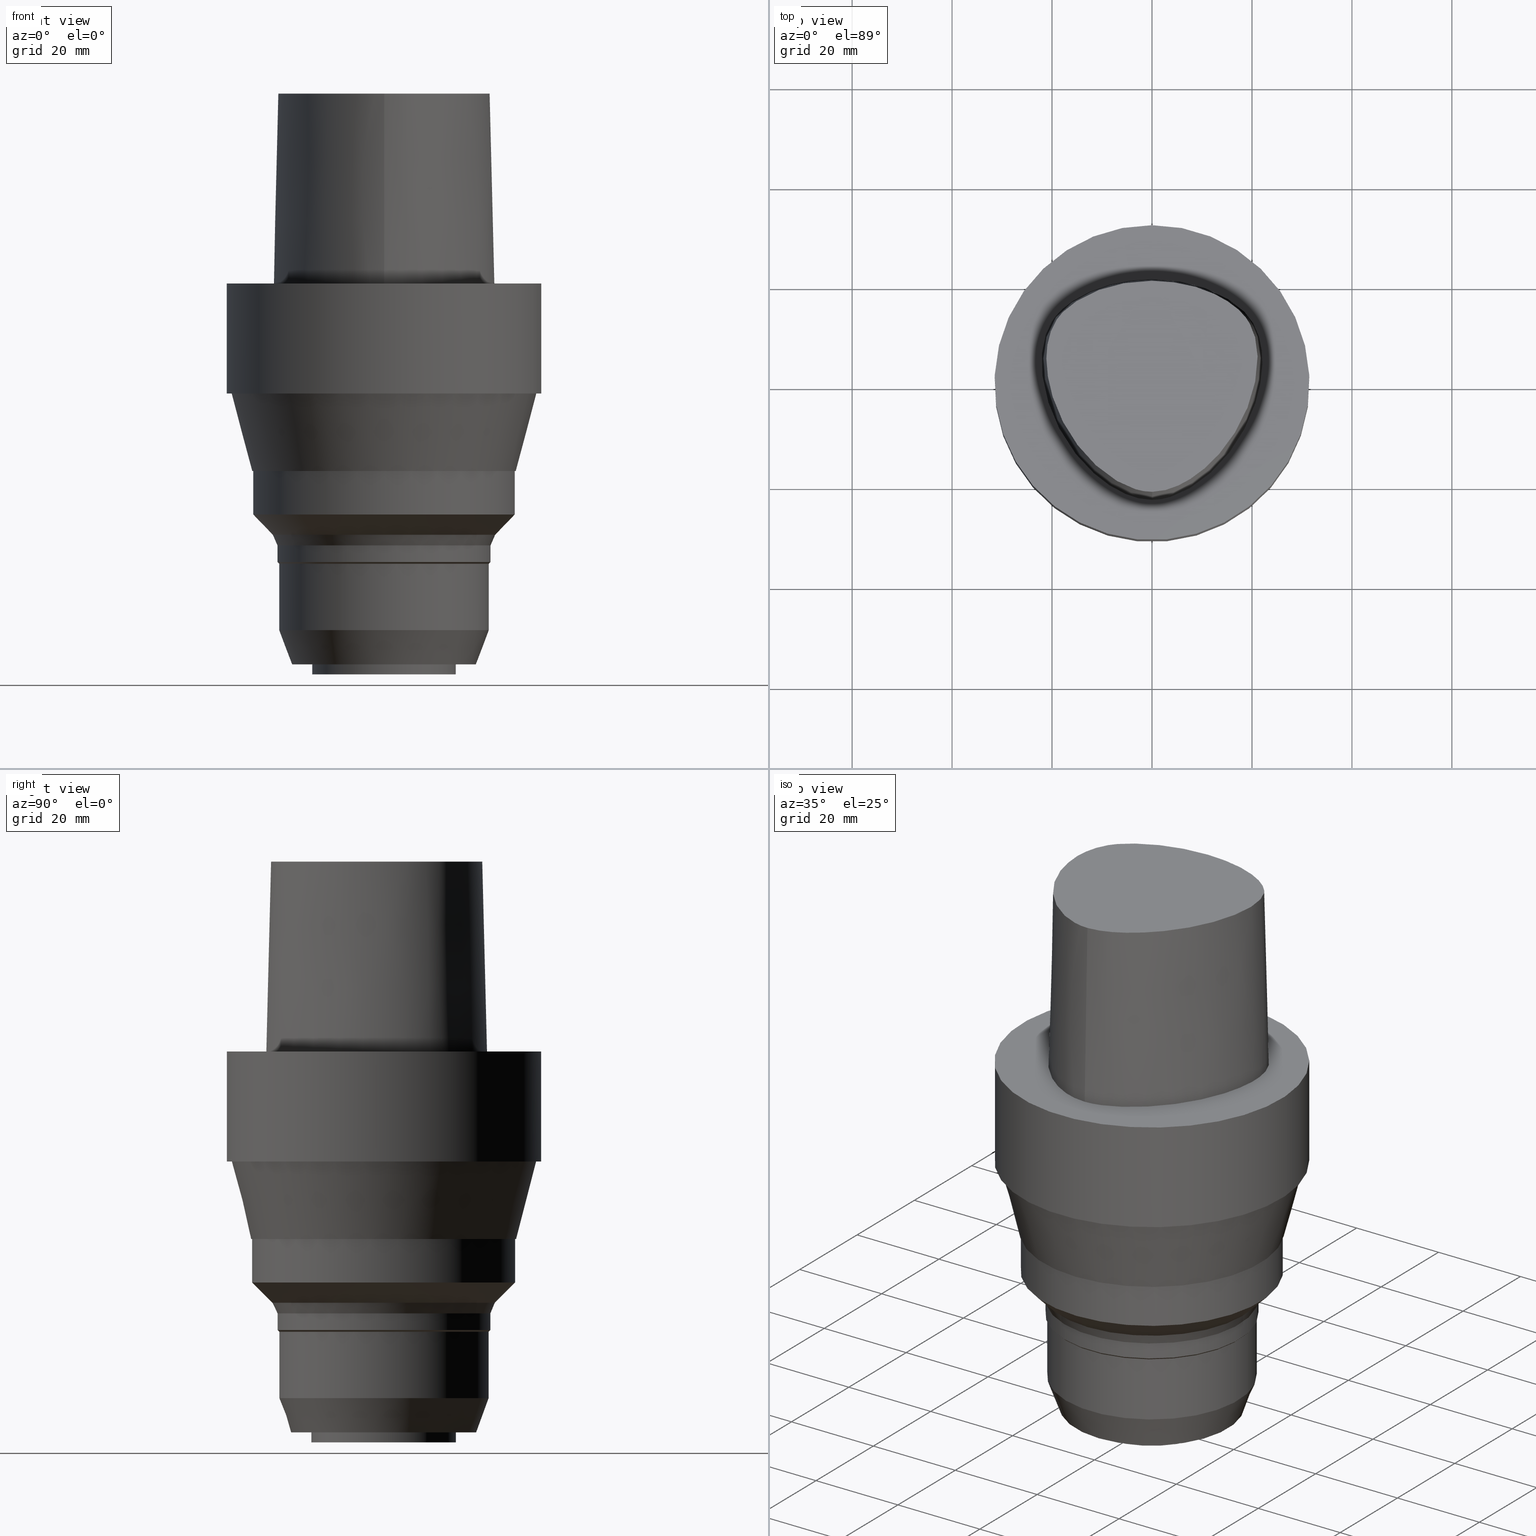
[diagram: canonical four-view strip — front | top / right | iso, engineering-drawing reading convention]
A machine part, canonical four-view strip (front | top / right | iso — engineering-drawing reading convention). The complete STEP part file that produces these views, byte-faithful:
ISO-10303-21;
HEADER;
FILE_DESCRIPTION((''),'1');
FILE_NAME('V:/90_\X2\53D65F9730C730FC30BF\X0\/00_\X2\6DE18DEF30C730FC30BF\X0\/ALL/CAPTO-BKUS\X2\52A05DE556F3\X0\_201801/C6-MEGADS-A/C6-MEGA.625DS-3A.stp','2018-02-01T09:05:27',(''),(''),'Spatial Interop R21 SP3','Kubotek KeyCreator 2011 V10.0.2 (22737)',' ');
FILE_SCHEMA(('automotive_design'));
ENDSEC;
DATA;
#1=MECHANICAL_DESIGN_GEOMETRIC_PRESENTATION_REPRESENTATION(' ',(#10,#11,#12,#13,#14,#15,#16,#17,#18,#19,#20,#21,#22,#23,#24,#25,#26,#27,#28,#29,#30,#31,#32,#33,#34,#35,#36,#37,#38,#39,#40,#41,#42,#43,#44,#45,#46,#47,#48,#49,#50,#51),#6);
#2=PRODUCT_DEFINITION_CONTEXT('',#52,'design');
#3=APPLICATION_PROTOCOL_DEFINITION('INTERNATIONAL STANDARD','automotive_design',1994,#52);
#4=PRODUCT_CATEGORY_RELATIONSHIP('NONE','NONE',#53,#54);
#5=SHAPE_DEFINITION_REPRESENTATION(#55,#56);
#6= (GEOMETRIC_REPRESENTATION_CONTEXT(3)GLOBAL_UNCERTAINTY_ASSIGNED_CONTEXT((#59))GLOBAL_UNIT_ASSIGNED_CONTEXT((#61,#62,#63))REPRESENTATION_CONTEXT('NONE','WORKSPACE'));
#10=STYLED_ITEM('',(#65),#66);
#11=STYLED_ITEM('',(#67),#68);
#12=STYLED_ITEM('',(#69),#70);
#13=STYLED_ITEM('',(#71,#72),#73);
#14=STYLED_ITEM('',(#74),#75);
#15=STYLED_ITEM('',(#76),#77);
#16=STYLED_ITEM('',(#78),#79);
#17=STYLED_ITEM('',(#80),#81);
#18=STYLED_ITEM('',(#82,#83),#84);
#19=STYLED_ITEM('',(#85,#86),#87);
#20=STYLED_ITEM('',(#88),#89);
#21=STYLED_ITEM('',(#90,#91),#92);
#22=STYLED_ITEM('',(#93,#94),#95);
#23=STYLED_ITEM('',(#96,#97),#98);
#24=STYLED_ITEM('',(#99,#100),#101);
#25=STYLED_ITEM('',(#102,#103),#104);
#26=STYLED_ITEM('',(#105,#106),#107);
#27=STYLED_ITEM('',(#108,#109),#110);
#28=STYLED_ITEM('',(#111),#112);
#29=STYLED_ITEM('',(#113),#114);
#30=STYLED_ITEM('',(#115,#116),#117);
#31=STYLED_ITEM('',(#118),#119);
#32=STYLED_ITEM('',(#120,#121),#122);
#33=STYLED_ITEM('',(#123),#124);
#34=STYLED_ITEM('',(#125,#126),#127);
#35=STYLED_ITEM('',(#128,#129),#130);
#36=STYLED_ITEM('',(#131,#132),#133);
#37=STYLED_ITEM('',(#134),#135);
#38=STYLED_ITEM('',(#136),#137);
#39=STYLED_ITEM('',(#138,#139),#140);
#40=STYLED_ITEM('',(#141,#142),#143);
#41=STYLED_ITEM('',(#144),#145);
#42=STYLED_ITEM('',(#146),#147);
#43=STYLED_ITEM('',(#148,#149),#150);
#44=STYLED_ITEM('',(#151),#152);
#45=STYLED_ITEM('',(#153),#154);
#46=STYLED_ITEM('',(#155),#156);
#47=STYLED_ITEM('',(#157),#158);
#48=STYLED_ITEM('',(#159),#160);
#49=STYLED_ITEM('',(#161,#162),#163);
#50=STYLED_ITEM('',(#164,#165),#166);
#51=STYLED_ITEM('',(#167),#168);
#52=APPLICATION_CONTEXT(' ');
#53=PRODUCT_CATEGORY('part','NONE');
#54=PRODUCT_RELATED_PRODUCT_CATEGORY('detail',' ',(#169));
#55=PRODUCT_DEFINITION_SHAPE('NONE','NONE',#170);
#56=ADVANCED_BREP_SHAPE_REPRESENTATION('Unnamed[1]',(#143,#171),#6);
#59=UNCERTAINTY_MEASURE_WITH_UNIT(LENGTH_MEASURE(1.0E-006),#61,'','');
#61= (CONVERSION_BASED_UNIT('MILLIMETRE',#174)LENGTH_UNIT()NAMED_UNIT(#177));
#62= (NAMED_UNIT(#179)PLANE_ANGLE_UNIT()SI_UNIT($,.RADIAN.));
#63= (NAMED_UNIT(#179)SOLID_ANGLE_UNIT()SI_UNIT($,.STERADIAN.));
#65=PRESENTATION_STYLE_ASSIGNMENT((#185));
#66=EDGE_CURVE('Unnamed[1]',#186,#186,#187,.T.);
#67=PRESENTATION_STYLE_ASSIGNMENT((#188));
#68=EDGE_CURVE('Unnamed[1]',#189,#190,#191,.T.);
#69=PRESENTATION_STYLE_ASSIGNMENT((#192));
#70=EDGE_CURVE('Unnamed[1]',#193,#193,#194,.T.);
#71=PRESENTATION_STYLE_ASSIGNMENT((#195));
#72=PRESENTATION_STYLE_ASSIGNMENT((#196));
#73=ADVANCED_FACE('Unnamed[1]',(#197,#198),#199,.T.);
#74=PRESENTATION_STYLE_ASSIGNMENT((#200));
#75=EDGE_CURVE('Unnamed[1]',#201,#201,#202,.T.);
#76=PRESENTATION_STYLE_ASSIGNMENT((#203));
#77=EDGE_CURVE('Unnamed[1]',#204,#204,#205,.T.);
#78=PRESENTATION_STYLE_ASSIGNMENT((#206));
#79=EDGE_CURVE('Unnamed[1]',#207,#208,#209,.T.);
#80=PRESENTATION_STYLE_ASSIGNMENT((#210));
#81=EDGE_CURVE('Unnamed[1]',#211,#211,#212,.T.);
#82=PRESENTATION_STYLE_ASSIGNMENT((#213));
#83=PRESENTATION_STYLE_ASSIGNMENT((#214));
#84=ADVANCED_FACE('Unnamed[1]',(#215),#216,.T.);
#85=PRESENTATION_STYLE_ASSIGNMENT((#217));
#86=PRESENTATION_STYLE_ASSIGNMENT((#218));
#87=ADVANCED_FACE('Unnamed[1]',(#219,#220),#221,.T.);
#88=PRESENTATION_STYLE_ASSIGNMENT((#222));
#89=EDGE_CURVE('Unnamed[1]',#207,#190,#223,.T.);
#90=PRESENTATION_STYLE_ASSIGNMENT((#224));
#91=PRESENTATION_STYLE_ASSIGNMENT((#225));
#92=ADVANCED_FACE('Unnamed[1]',(#226,#227),#228,.T.);
#93=PRESENTATION_STYLE_ASSIGNMENT((#229));
#94=PRESENTATION_STYLE_ASSIGNMENT((#230));
#95=ADVANCED_FACE('Unnamed[1]',(#231),#232,.T.);
#96=PRESENTATION_STYLE_ASSIGNMENT((#233));
#97=PRESENTATION_STYLE_ASSIGNMENT((#234));
#98=ADVANCED_FACE('Unnamed[1]',(#235,#236),#237,.T.);
#99=PRESENTATION_STYLE_ASSIGNMENT((#238));
#100=PRESENTATION_STYLE_ASSIGNMENT((#239));
#101=ADVANCED_FACE('Unnamed[1]',(#240,#241),#242,.T.);
#102=PRESENTATION_STYLE_ASSIGNMENT((#243));
#103=PRESENTATION_STYLE_ASSIGNMENT((#244));
#104=ADVANCED_FACE('Unnamed[1]',(#245,#246),#247,.T.);
#105=PRESENTATION_STYLE_ASSIGNMENT((#248));
#106=PRESENTATION_STYLE_ASSIGNMENT((#249));
#107=ADVANCED_FACE('Unnamed[1]',(#250,#251),#252,.T.);
#108=PRESENTATION_STYLE_ASSIGNMENT((#253));
#109=PRESENTATION_STYLE_ASSIGNMENT((#254));
#110=ADVANCED_FACE('Unnamed[1]',(#255,#256),#257,.T.);
#111=PRESENTATION_STYLE_ASSIGNMENT((#258));
#112=EDGE_CURVE('Unnamed[1]',#259,#189,#260,.T.);
#113=PRESENTATION_STYLE_ASSIGNMENT((#261));
#114=EDGE_CURVE('Unnamed[1]',#262,#262,#263,.T.);
#115=PRESENTATION_STYLE_ASSIGNMENT((#264));
#116=PRESENTATION_STYLE_ASSIGNMENT((#265));
#117=ADVANCED_FACE('Unnamed[1]',(#266,#267),#268,.T.);
#118=PRESENTATION_STYLE_ASSIGNMENT((#269));
#119=EDGE_CURVE('Unnamed[1]',#270,#270,#271,.T.);
#120=PRESENTATION_STYLE_ASSIGNMENT((#272));
#121=PRESENTATION_STYLE_ASSIGNMENT((#273));
#122=ADVANCED_FACE('Unnamed[1]',(#274,#275),#276,.T.);
#123=PRESENTATION_STYLE_ASSIGNMENT((#277));
#124=EDGE_CURVE('Unnamed[1]',#278,#278,#279,.T.);
#125=PRESENTATION_STYLE_ASSIGNMENT((#280));
#126=PRESENTATION_STYLE_ASSIGNMENT((#281));
#127=ADVANCED_FACE('Unnamed[1]',(#282),#283,.T.);
#128=PRESENTATION_STYLE_ASSIGNMENT((#284));
#129=PRESENTATION_STYLE_ASSIGNMENT((#285));
#130=ADVANCED_FACE('Unnamed[1]',(#286,#287),#288,.T.);
#131=PRESENTATION_STYLE_ASSIGNMENT((#289));
#132=PRESENTATION_STYLE_ASSIGNMENT((#290));
#133=ADVANCED_FACE('Unnamed[1]',(#291),#292,.T.);
#134=PRESENTATION_STYLE_ASSIGNMENT((#293));
#135=EDGE_CURVE('Unnamed[1]',#294,#294,#295,.T.);
#136=PRESENTATION_STYLE_ASSIGNMENT((#296));
#137=EDGE_CURVE('Unnamed[1]',#297,#297,#298,.T.);
#138=PRESENTATION_STYLE_ASSIGNMENT((#299));
#139=PRESENTATION_STYLE_ASSIGNMENT((#300));
#140=ADVANCED_FACE('Unnamed[1]',(#301,#302),#303,.T.);
#141=PRESENTATION_STYLE_ASSIGNMENT((#304));
#142=PRESENTATION_STYLE_ASSIGNMENT((#305));
#143=MANIFOLD_SOLID_BREP('Unnamed[1]',#306);
#144=PRESENTATION_STYLE_ASSIGNMENT((#307));
#145=EDGE_CURVE('Unnamed[1]',#190,#259,#308,.T.);
#146=PRESENTATION_STYLE_ASSIGNMENT((#309));
#147=EDGE_CURVE('Unnamed[1]',#208,#189,#310,.T.);
#148=PRESENTATION_STYLE_ASSIGNMENT((#311));
#149=PRESENTATION_STYLE_ASSIGNMENT((#312));
#150=ADVANCED_FACE('Unnamed[1]',(#313),#314,.T.);
#151=PRESENTATION_STYLE_ASSIGNMENT((#315));
#152=EDGE_CURVE('Unnamed[1]',#316,#316,#317,.T.);
#153=PRESENTATION_STYLE_ASSIGNMENT((#318));
#154=EDGE_CURVE('Unnamed[1]',#319,#319,#320,.T.);
#155=PRESENTATION_STYLE_ASSIGNMENT((#321));
#156=EDGE_CURVE('Unnamed[1]',#208,#207,#322,.T.);
#157=PRESENTATION_STYLE_ASSIGNMENT((#323));
#158=EDGE_CURVE('Unnamed[1]',#324,#324,#325,.T.);
#159=PRESENTATION_STYLE_ASSIGNMENT((#326));
#160=EDGE_CURVE('Unnamed[1]',#327,#327,#328,.T.);
#161=PRESENTATION_STYLE_ASSIGNMENT((#329));
#162=PRESENTATION_STYLE_ASSIGNMENT((#330));
#163=ADVANCED_FACE('Unnamed[1]',(#331,#332),#333,.T.);
#164=PRESENTATION_STYLE_ASSIGNMENT((#334));
#165=PRESENTATION_STYLE_ASSIGNMENT((#335));
#166=ADVANCED_FACE('Unnamed[1]',(#336,#337),#338,.T.);
#167=PRESENTATION_STYLE_ASSIGNMENT((#339));
#168=EDGE_CURVE('Unnamed[1]',#208,#259,#340,.T.);
#169=PRODUCT('Unnamed[1]','Unnamed[1]','PART-Unnamed[1]-DESC',(#341));
#170=PRODUCT_DEFINITION('NONE','NONE',#342,#2);
#171=AXIS2_PLACEMENT_3D('',#343,#344,#345);
#174=LENGTH_MEASURE_WITH_UNIT(LENGTH_MEASURE(1.0),#346);
#177=DIMENSIONAL_EXPONENTS(1.0,0.0,0.0,0.0,0.0,0.0,0.0);
#179=DIMENSIONAL_EXPONENTS(0.0,0.0,0.0,0.0,0.0,0.0,0.0);
#185=CURVE_STYLE('',#347,POSITIVE_LENGTH_MEASURE(1000.0),#348);
#186=VERTEX_POINT('',#349);
#187=CIRCLE('',#350,22.2286796564404);
#188=CURVE_STYLE('',#351,POSITIVE_LENGTH_MEASURE(1000.0),#352);
#189=VERTEX_POINT('',#353);
#190=VERTEX_POINT('',#354);
#191=B_SPLINE_CURVE_WITH_KNOTS('',3,(#355,#356,#357,#358,#359,#360,#361,#362,#363,#364,#365,#366,#367,#368,#369,#370,#371),.UNSPECIFIED.,.F.,.F.,(4,1,1,1,1,1,1,1,1,1,1,1,1,1,4),(-13.2302678617486,-12.816821991069,-12.4033761203893,-11.9899302497097,-11.57648437903,-11.1630385083504,-10.9563155730106,-10.7495926376707,-10.3361467669911,-9.92270089631145,-9.09580915495216,-8.26891741359287,-7.44202567223358,-7.02857980155394,-6.6151339308743),.UNSPECIFIED.);
#192=CURVE_STYLE('',#372,POSITIVE_LENGTH_MEASURE(1000.0),#373);
#193=VERTEX_POINT('',#374);
#194=CIRCLE('',#375,20.9999999999999);
#195=SURFACE_STYLE_USAGE(.BOTH.,#376);
#196=CURVE_STYLE('',#377,POSITIVE_LENGTH_MEASURE(1000.0),#378);
#197=FACE_BOUND('',#379,.T.);
#198=FACE_BOUND('',#380,.T.);
#199=CYLINDRICAL_SURFACE('',#381,31.5);
#200=CURVE_STYLE('',#382,POSITIVE_LENGTH_MEASURE(1000.0),#383);
#201=VERTEX_POINT('',#384);
#202=CIRCLE('',#385,20.9999999999999);
#203=CURVE_STYLE('',#386,POSITIVE_LENGTH_MEASURE(1000.0),#387);
#204=VERTEX_POINT('',#388);
#205=CIRCLE('',#389,26.3000000000001);
#206=CURVE_STYLE('',#390,POSITIVE_LENGTH_MEASURE(1000.0),#391);
#207=VERTEX_POINT('',#392);
#208=VERTEX_POINT('',#393);
#209=B_SPLINE_CURVE_WITH_KNOTS('',3,(#394,#395,#396,#397,#398,#399,#400,#401,#402,#403,#404,#405,#406,#407,#408,#409),.UNSPECIFIED.,.F.,.F.,(4,1,1,1,1,1,1,1,1,1,1,1,1,4),(6.61513393087476,6.99917207152274,7.48193246986995,7.96289324787093,8.45540287038584,9.10291653679981,9.67129810936083,10.1618749681153,10.6358867802489,11.1080734988593,11.6043706019633,12.09451993853,12.6985979284494,13.2302678617486),.UNSPECIFIED.);
#210=CURVE_STYLE('',#410,POSITIVE_LENGTH_MEASURE(1000.0),#411);
#211=VERTEX_POINT('',#412);
#212=CIRCLE('',#413,31.5);
#213=SURFACE_STYLE_USAGE(.BOTH.,#414);
#214=CURVE_STYLE('',#415,POSITIVE_LENGTH_MEASURE(1000.0),#416);
#215=FACE_OUTER_BOUND('',#417,.T.);
#216=B_SPLINE_SURFACE_WITH_KNOTS('',3,3,((#418,#419,#420,#421),(#422,#423,#424,#425),(#426,#427,#428,#429),(#430,#431,#432,#433),(#434,#435,#436,#437),(#438,#439,#440,#441),(#442,#443,#444,#445),(#446,#447,#448,#449),(#450,#451,#452,#453),(#454,#455,#456,#457),(#458,#459,#460,#461),(#462,#463,#464,#465),(#466,#467,#468,#469),(#470,#471,#472,#473),(#474,#475,#476,#477),(#478,#479,#480,#481),(#482,#483,#484,#485),(#486,#487,#488,#489)),.UNSPECIFIED.,.F.,.F.,.F.,(4,1,1,1,1,1,1,1,1,2,1,1,1,1,4),(4,4),(-6.6151339308743,-6.20168806019465,-5.78824218951501,-5.37479631883537,-4.96135044815572,-4.13445870679644,-3.30756696543715,-2.89412109475751,-2.48067522407786,-2.06722935339822,-1.65378348271857,-1.24033761203893,-0.826891741359287,-0.413445870679644,0.0),(-3.8,0.0),.UNSPECIFIED.);
#217=SURFACE_STYLE_USAGE(.BOTH.,#490);
#218=CURVE_STYLE('',#491,POSITIVE_LENGTH_MEASURE(1000.0),#492);
#219=FACE_BOUND('',#493,.T.);
#220=FACE_OUTER_BOUND('',#494,.T.);
#221=PLANE('',#495);
#222=CURVE_STYLE('',#496,POSITIVE_LENGTH_MEASURE(1000.0),#497);
#223=LINE('',#498,#499);
#224=SURFACE_STYLE_USAGE(.BOTH.,#500);
#225=CURVE_STYLE('',#501,POSITIVE_LENGTH_MEASURE(1000.0),#502);
#226=FACE_BOUND('',#503,.T.);
#227=FACE_BOUND('',#504,.T.);
#228=CONICAL_SURFACE('',#505,21.7893398282202,0.392699081698718);
#229=SURFACE_STYLE_USAGE(.BOTH.,#506);
#230=CURVE_STYLE('',#507,POSITIVE_LENGTH_MEASURE(1000.0),#508);
#231=FACE_OUTER_BOUND('',#509,.T.);
#232=PLANE('',#510);
#233=SURFACE_STYLE_USAGE(.BOTH.,#511);
#234=CURVE_STYLE('',#512,POSITIVE_LENGTH_MEASURE(1000.0),#513);
#235=FACE_BOUND('',#514,.T.);
#236=FACE_BOUND('',#515,.T.);
#237=CONICAL_SURFACE('',#516,28.5000000000026,0.252554275777704);
#238=SURFACE_STYLE_USAGE(.BOTH.,#517);
#239=CURVE_STYLE('',#518,POSITIVE_LENGTH_MEASURE(1000.0),#519);
#240=FACE_BOUND('',#520,.T.);
#241=FACE_BOUND('',#521,.T.);
#242=CONICAL_SURFACE('',#522,24.2643398282202,0.785398163397472);
#243=SURFACE_STYLE_USAGE(.BOTH.,#523);
#244=CURVE_STYLE('',#524,POSITIVE_LENGTH_MEASURE(1000.0),#525);
#245=FACE_BOUND('',#526,.T.);
#246=FACE_BOUND('',#527,.T.);
#247=CYLINDRICAL_SURFACE('',#528,20.9999999999999);
#248=SURFACE_STYLE_USAGE(.BOTH.,#529);
#249=CURVE_STYLE('',#530,POSITIVE_LENGTH_MEASURE(1000.0),#531);
#250=FACE_BOUND('',#532,.T.);
#251=FACE_OUTER_BOUND('',#533,.T.);
#252=PLANE('',#534);
#253=SURFACE_STYLE_USAGE(.BOTH.,#535);
#254=CURVE_STYLE('',#536,POSITIVE_LENGTH_MEASURE(1000.0),#537);
#255=FACE_BOUND('',#538,.T.);
#256=FACE_OUTER_BOUND('',#539,.T.);
#257=PLANE('',#540);
#258=CURVE_STYLE('',#541,POSITIVE_LENGTH_MEASURE(1000.0),#542);
#259=VERTEX_POINT('',#543);
#260=CIRCLE('',#544,0.949936168436318);
#261=CURVE_STYLE('',#545,POSITIVE_LENGTH_MEASURE(1000.0),#546);
#262=VERTEX_POINT('',#547);
#263=CIRCLE('',#548,31.5);
#264=SURFACE_STYLE_USAGE(.BOTH.,#549);
#265=CURVE_STYLE('',#550,POSITIVE_LENGTH_MEASURE(1000.0),#551);
#266=FACE_BOUND('',#552,.T.);
#267=FACE_BOUND('',#553,.T.);
#268=CYLINDRICAL_SURFACE('',#554,26.3);
#269=CURVE_STYLE('',#555,POSITIVE_LENGTH_MEASURE(1000.0),#556);
#270=VERTEX_POINT('',#557);
#271=CIRCLE('',#558,30.4999999999999);
#272=SURFACE_STYLE_USAGE(.BOTH.,#559);
#273=CURVE_STYLE('',#560,POSITIVE_LENGTH_MEASURE(1000.0),#561);
#274=FACE_BOUND('',#562,.T.);
#275=FACE_BOUND('',#563,.T.);
#276=CYLINDRICAL_SURFACE('',#564,14.4599999999988);
#277=CURVE_STYLE('',#565,POSITIVE_LENGTH_MEASURE(1000.0),#566);
#278=VERTEX_POINT('',#567);
#279=CIRCLE('',#568,26.3);
#280=SURFACE_STYLE_USAGE(.BOTH.,#569);
#281=CURVE_STYLE('',#570,POSITIVE_LENGTH_MEASURE(1000.0),#571);
#282=FACE_OUTER_BOUND('',#572,.T.);
#283=CONICAL_SURFACE('',#573,1.0,0.0249931148600041);
#284=SURFACE_STYLE_USAGE(.BOTH.,#574);
#285=CURVE_STYLE('',#575,POSITIVE_LENGTH_MEASURE(1000.0),#576);
#286=FACE_BOUND('',#577,.T.);
#287=FACE_OUTER_BOUND('',#578,.T.);
#288=PLANE('',#579);
#289=SURFACE_STYLE_USAGE(.BOTH.,#580);
#290=CURVE_STYLE('',#581,POSITIVE_LENGTH_MEASURE(1000.0),#582);
#291=FACE_OUTER_BOUND('',#583,.T.);
#292=B_SPLINE_SURFACE_WITH_KNOTS('',3,3,((#584,#585,#586,#587),(#588,#589,#590,#591),(#592,#593,#594,#595),(#596,#597,#598,#599),(#600,#601,#602,#603),(#604,#605,#606,#607),(#608,#609,#610,#611),(#612,#613,#614,#615),(#616,#617,#618,#619),(#620,#621,#622,#623),(#624,#625,#626,#627),(#628,#629,#630,#631),(#632,#633,#634,#635),(#636,#637,#638,#639),(#640,#641,#642,#643),(#644,#645,#646,#647),(#648,#649,#650,#651)),.UNSPECIFIED.,.F.,.F.,.F.,(4,1,1,1,1,1,1,1,1,1,1,1,1,1,4),(4,4),(-13.2302678617486,-12.816821991069,-12.4033761203893,-11.9899302497097,-11.57648437903,-11.1630385083504,-10.9563155730106,-10.7495926376707,-10.3361467669911,-9.92270089631145,-9.09580915495216,-8.26891741359287,-7.44202567223358,-7.02857980155394,-6.6151339308743),(-3.8,0.0),.UNSPECIFIED.);
#293=CURVE_STYLE('',#652,POSITIVE_LENGTH_MEASURE(1000.0),#653);
#294=VERTEX_POINT('',#654);
#295=CIRCLE('',#655,21.35);
#296=CURVE_STYLE('',#656,POSITIVE_LENGTH_MEASURE(1000.0),#657);
#297=VERTEX_POINT('',#658);
#298=CIRCLE('',#659,14.4599999999987);
#299=SURFACE_STYLE_USAGE(.BOTH.,#660);
#300=CURVE_STYLE('',#661,POSITIVE_LENGTH_MEASURE(1000.0),#662);
#301=FACE_BOUND('',#663,.T.);
#302=FACE_BOUND('',#664,.T.);
#303=CONICAL_SURFACE('',#665,19.7499999999999,0.349065850398807);
#304=SURFACE_STYLE_USAGE(.BOTH.,#666);
#305=CURVE_STYLE('',#667,POSITIVE_LENGTH_MEASURE(1000.0),#668);
#306=CLOSED_SHELL('',(#133,#84,#127,#95,#107,#73,#87,#98,#130,#117,#101,#92,#166,#163,#104,#140,#110,#122,#150));
#307=CURVE_STYLE('',#669,POSITIVE_LENGTH_MEASURE(1000.0),#670);
#308=B_SPLINE_CURVE_WITH_KNOTS('',3,(#671,#672,#673,#674,#675,#676,#677,#678,#679,#680,#681,#682,#683,#684,#685,#686,#687,#688),.UNSPECIFIED.,.F.,.F.,(4,1,1,1,1,1,1,1,1,2,1,1,1,1,4),(-6.6151339308743,-6.20168806019465,-5.78824218951501,-5.37479631883537,-4.96135044815572,-4.13445870679644,-3.30756696543715,-2.89412109475751,-2.48067522407786,-2.06722935339822,-1.65378348271857,-1.24033761203893,-0.826891741359287,-0.413445870679644,0.0),.UNSPECIFIED.);
#309=CURVE_STYLE('',#689,POSITIVE_LENGTH_MEASURE(1000.0),#690);
#310=LINE('',#691,#692);
#311=SURFACE_STYLE_USAGE(.BOTH.,#693);
#312=CURVE_STYLE('',#694,POSITIVE_LENGTH_MEASURE(1000.0),#695);
#313=FACE_OUTER_BOUND('',#696,.T.);
#314=PLANE('',#697);
#315=CURVE_STYLE('',#698,POSITIVE_LENGTH_MEASURE(1000.0),#699);
#316=VERTEX_POINT('',#700);
#317=CIRCLE('',#701,21.35);
#318=CURVE_STYLE('',#702,POSITIVE_LENGTH_MEASURE(1000.0),#703);
#319=VERTEX_POINT('',#704);
#320=CIRCLE('',#705,26.5000000000054);
#321=CURVE_STYLE('',#706,POSITIVE_LENGTH_MEASURE(1000.0),#707);
#322=B_SPLINE_CURVE_WITH_KNOTS('',3,(#708,#709,#710,#711,#712,#713,#714,#715,#716,#717,#718,#719,#720,#721,#722,#723),.UNSPECIFIED.,.F.,.F.,(4,1,1,1,1,1,1,1,1,1,1,1,1,4),(0.0,0.447924670568964,0.9388024242536,1.50591409090711,2.07314340012323,2.72424957442464,3.2253501842849,3.80982102049476,4.34867996267067,4.85900173381144,5.37972031856977,6.03459825488646,6.61113557741484,6.61513393087395),.UNSPECIFIED.);
#323=CURVE_STYLE('',#724,POSITIVE_LENGTH_MEASURE(1000.0),#725);
#324=VERTEX_POINT('',#726);
#325=CIRCLE('',#727,18.4999999999999);
#326=CURVE_STYLE('',#728,POSITIVE_LENGTH_MEASURE(1000.0),#729);
#327=VERTEX_POINT('',#730);
#328=CIRCLE('',#731,14.459999999999);
#329=SURFACE_STYLE_USAGE(.BOTH.,#732);
#330=CURVE_STYLE('',#733,POSITIVE_LENGTH_MEASURE(1000.0),#734);
#331=FACE_BOUND('',#735,.T.);
#332=FACE_BOUND('',#736,.T.);
#333=CONICAL_SURFACE('',#737,21.175,0.785398163387145);
#334=SURFACE_STYLE_USAGE(.BOTH.,#738);
#335=CURVE_STYLE('',#739,POSITIVE_LENGTH_MEASURE(1000.0),#740);
#336=FACE_BOUND('',#741,.T.);
#337=FACE_BOUND('',#742,.T.);
#338=CYLINDRICAL_SURFACE('',#743,21.35);
#339=CURVE_STYLE('',#744,POSITIVE_LENGTH_MEASURE(1000.0),#745);
#340=LINE('',#746,#747);
#341=PRODUCT_CONTEXT('',#52,'mechanical');
#342=PRODUCT_DEFINITION_FORMATION_WITH_SPECIFIED_SOURCE(' ','NONE',#169,.NOT_KNOWN.);
#343=CARTESIAN_POINT('',(0.0,0.0,0.0));
#344=DIRECTION('',(0.0,0.0,1.0));
#345=DIRECTION('',(1.0,0.0,0.0));
#346= (NAMED_UNIT(#177)LENGTH_UNIT()SI_UNIT(.MILLI.,.METRE.));
#347=DRAUGHTING_PRE_DEFINED_CURVE_FONT('continuous');
#348=COLOUR_RGB('',0.0,1.0,0.0);
#349=CARTESIAN_POINT('',(3.07823057738177E-015,22.2286796564404,-50.2713203435464));
#350=AXIS2_PLACEMENT_3D('',#749,#750,#751);
#351=DRAUGHTING_PRE_DEFINED_CURVE_FONT('continuous');
#352=COLOUR_RGB('',0.0,1.0,0.0);
#353=CARTESIAN_POINT('',(0.044682985379347,20.6765087343109,1.61778115328528E-031));
#354=CARTESIAN_POINT('',(0.04359356758149,-23.4691235068931,7.78075697532443E-032));
#355=CARTESIAN_POINT('',(0.044682985379347,20.6765087343109,1.61778115328528E-031));
#356=CARTESIAN_POINT('',(1.42379272427753,20.6097915814392,8.62816615085482E-032));
#357=CARTESIAN_POINT('',(4.2230955003445,20.4837538303966,1.4791141972894E-031));
#358=CARTESIAN_POINT('',(8.47220762821777,19.6890432607088,9.86076131526265E-032));
#359=CARTESIAN_POINT('',(12.5141247708253,18.2434968480404,0.0));
#360=CARTESIAN_POINT('',(16.3038624872874,16.1734192182143,1.97215226305253E-031));
#361=CARTESIAN_POINT('',(19.1446913988473,13.7036723639434,-1.97215226305253E-031));
#362=CARTESIAN_POINT('',(20.7319894342149,11.1014620996188,0.0));
#363=CARTESIAN_POINT('',(21.7831756505763,8.28099229708081,-1.97215226305253E-031));
#364=CARTESIAN_POINT('',(22.2258240701438,4.60865440596506,0.0));
#365=CARTESIAN_POINT('',(21.7436130080666,-1.11326526354485,0.0));
#366=CARTESIAN_POINT('',(19.5519487660502,-7.95432366164584,0.0));
#367=CARTESIAN_POINT('',(14.9574167123838,-15.2089785567293,0.0));
#368=CARTESIAN_POINT('',(9.66840283021945,-20.0827414369705,-9.86076131526265E-032));
#369=CARTESIAN_POINT('',(4.51628650521788,-22.7946374572188,-9.86076131526265E-032));
#370=CARTESIAN_POINT('',(1.55867251738073,-23.4612972770043,-1.23259516440783E-032));
#371=CARTESIAN_POINT('',(0.04359356758149,-23.4691235068931,7.78075697532443E-032));
#372=DRAUGHTING_PRE_DEFINED_CURVE_FONT('continuous');
#373=COLOUR_RGB('',0.0,1.0,0.0);
#374=CARTESIAN_POINT('',(3.43207265461011E-015,20.9999999999999,-56.0499999999943));
#375=AXIS2_PLACEMENT_3D('',#752,#753,#754);
#376=SURFACE_SIDE_STYLE('',(#755));
#377=DRAUGHTING_PRE_DEFINED_CURVE_FONT('continuous');
#378=COLOUR_RGB('',0.0,1.0,0.0);
#379=EDGE_LOOP('',(#756));
#380=EDGE_LOOP('',(#757));
#381=AXIS2_PLACEMENT_3D('',#758,#759,#760);
#382=DRAUGHTING_PRE_DEFINED_CURVE_FONT('continuous');
#383=COLOUR_RGB('',0.0,1.0,0.0);
#384=CARTESIAN_POINT('',(4.24531812631753E-015,20.9999999999999,-69.3313064513504));
#385=AXIS2_PLACEMENT_3D('',#761,#762,#763);
#386=DRAUGHTING_PRE_DEFINED_CURVE_FONT('continuous');
#387=COLOUR_RGB('',0.0,1.0,0.0);
#388=CARTESIAN_POINT('',(2.29621274840141E-015,26.3000000000001,-37.5000000000021));
#389=AXIS2_PLACEMENT_3D('',#764,#765,#766);
#390=DRAUGHTING_PRE_DEFINED_CURVE_FONT('continuous');
#391=COLOUR_RGB('',0.0,1.0,0.0);
#392=CARTESIAN_POINT('',(0.038736923393866,-22.5191997536361,38.0));
#393=CARTESIAN_POINT('',(-0.001218547003662,19.7276821925089,38.0));
#394=CARTESIAN_POINT('',(0.038736923394311,-22.519199753636,38.0));
#395=CARTESIAN_POINT('',(1.31742058183662,-22.512662269405,38.0));
#396=CARTESIAN_POINT('',(4.2093773447498,-21.9116226439989,38.0));
#397=CARTESIAN_POINT('',(8.20895504542113,-19.7798683845067,38.0));
#398=CARTESIAN_POINT('',(11.9784633234593,-16.681663904162,38.0));
#399=CARTESIAN_POINT('',(15.5308821579362,-12.5807487594113,38.0));
#400=CARTESIAN_POINT('',(18.4566248438667,-7.64932246015528,38.0));
#401=CARTESIAN_POINT('',(20.4036090752029,-2.27012499825289,38.0));
#402=CARTESIAN_POINT('',(21.2357187429189,2.79891401173156,38.0));
#403=CARTESIAN_POINT('',(21.0811206267748,7.62543090736657,38.0));
#404=CARTESIAN_POINT('',(19.3383577336563,12.2772250726194,38.0));
#405=CARTESIAN_POINT('',(15.5796322014404,15.5799672120682,38.0));
#406=CARTESIAN_POINT('',(10.8392956074438,17.9834601687347,38.0));
#407=CARTESIAN_POINT('',(5.56068045850571,19.4586143858472,38.0));
#408=CARTESIAN_POINT('',(1.77223893711014,19.6418877095654,38.0));
#409=CARTESIAN_POINT('',(-0.001218367817519,19.7276822012873,38.0));
#410=DRAUGHTING_PRE_DEFINED_CURVE_FONT('continuous');
#411=COLOUR_RGB('',0.0,1.0,0.0);
#412=CARTESIAN_POINT('',(1.34711147906212E-015,31.5,-22.0000000000006));
#413=AXIS2_PLACEMENT_3D('',#767,#768,#769);
#414=SURFACE_SIDE_STYLE('',(#770));
#415=DRAUGHTING_PRE_DEFINED_CURVE_FONT('continuous');
#416=COLOUR_RGB('',0.0,1.0,0.0);
#417=EDGE_LOOP('',(#771,#772,#773,#774));
#418=CARTESIAN_POINT('',(0.038736923393866,-22.5191997536361,38.0));
#419=CARTESIAN_POINT('',(0.04035580478973,-22.8358410047159,25.3333333333066));
#420=CARTESIAN_POINT('',(0.041974686185626,-23.1524822558133,12.6666666666934));
#421=CARTESIAN_POINT('',(0.04359356758149,-23.4691235068931,7.78075697532443E-032));
#422=CARTESIAN_POINT('',(-1.33786123484754,-22.5261650259856,38.0));
#423=CARTESIAN_POINT('',(-1.38240731367927,-22.8430399310626,25.3333333333066));
#424=CARTESIAN_POINT('',(-1.42695339249092,-23.1599147815484,12.6666666666934));
#425=CARTESIAN_POINT('',(-1.4714994713963,-23.4767895315797,2.46519032881566E-032));
#426=CARTESIAN_POINT('',(-4.08909358431842,-21.9268839879558,38.0));
#427=CARTESIAN_POINT('',(-4.20580731135515,-22.2249725500078,25.3333333333066));
#428=CARTESIAN_POINT('',(-4.32252104640446,-22.5230611651922,12.6666666666934));
#429=CARTESIAN_POINT('',(-4.43923476371401,-22.821149804767,-4.93038065763132E-032));
#430=CARTESIAN_POINT('',(-7.8333083619947,-19.9973514861616,38.0));
#431=CARTESIAN_POINT('',(-8.00568301809614,-20.2649260859405,25.3333333333066));
#432=CARTESIAN_POINT('',(-8.1780576640789,-20.532500564315,12.6666666666934));
#433=CARTESIAN_POINT('',(-8.35043230079961,-20.8000751253325,-9.86076131526265E-032));
#434=CARTESIAN_POINT('',(-11.1035071147626,-17.450554957873,38.0));
#435=CARTESIAN_POINT('',(-11.3173048160562,-17.6855739222454,25.3333333333066));
#436=CARTESIAN_POINT('',(-11.5311025116181,-17.9205928617968,12.6666666666934));
#437=CARTESIAN_POINT('',(-11.744900222602,-18.1556117874078,-1.97215226305253E-031));
#438=CARTESIAN_POINT('',(-14.9379535189057,-13.461132049697,38.0));
#439=CARTESIAN_POINT('',(-15.191622410671,-13.6542981711372,25.3333333333066));
#440=CARTESIAN_POINT('',(-15.4452913389853,-13.8474645327131,12.6666666666934));
#441=CARTESIAN_POINT('',(-15.6989602501314,-14.0406306929147,-1.97215226305253E-031));
#442=CARTESIAN_POINT('',(-18.6681263017223,-7.59391757463204,38.0));
#443=CARTESIAN_POINT('',(-18.9571800800711,-7.73136168081928,25.3333333333066));
#444=CARTESIAN_POINT('',(-19.2462337287194,-7.86880572399774,12.6666666666934));
#445=CARTESIAN_POINT('',(-19.5352875070682,-8.00624990770787,1.97215226305253E-031));
#446=CARTESIAN_POINT('',(-20.7857899858339,-0.952862819790525,38.0));
#447=CARTESIAN_POINT('',(-21.0973808305434,-1.02218087467418,25.3333333333066));
#448=CARTESIAN_POINT('',(-21.408971677436,-1.09149899580772,12.6666666666934));
#449=CARTESIAN_POINT('',(-21.7205626190491,-1.16081708945282,0.0));
#450=CARTESIAN_POINT('',(-21.2911760556836,4.5469215763113,38.0));
#451=CARTESIAN_POINT('',(-21.610337904926,4.54783292082248,25.3333333333066));
#452=CARTESIAN_POINT('',(-21.9294998290918,4.54874426225691,12.6666666666934));
#453=CARTESIAN_POINT('',(-22.2486616783342,4.54965558738736,0.0));
#454=CARTESIAN_POINT('',(-20.7345309521958,8.74909381391006,38.0));
#455=CARTESIAN_POINT('',(-21.0445680426217,8.83349432450556,25.3333333333066));
#456=CARTESIAN_POINT('',(-21.3546050933631,8.91789488065068,12.6666666666934));
#457=CARTESIAN_POINT('',(-21.6646421256468,9.00229539124618,0.0));
#458=CARTESIAN_POINT('',(-19.5531512296439,11.3174844040833,38.0));
#459=CARTESIAN_POINT('',(-19.8336219699984,11.4710077674213,25.3333333333066));
#460=CARTESIAN_POINT('',(-20.1140927680763,11.6245311337623,12.6666666666934));
#461=CARTESIAN_POINT('',(-20.3945635471922,11.7780544971003,0.0));
#462=CARTESIAN_POINT('',(-17.9100913688793,13.524027510437,38.0));
#463=CARTESIAN_POINT('',(-18.1375785458768,13.7487051053655,25.3333333333066));
#464=CARTESIAN_POINT('',(-18.365065665211,13.9733826973296,12.6666666666934));
#465=CARTESIAN_POINT('',(-18.5925528034471,14.1980602922581,0.0));
#466=CARTESIAN_POINT('',(-15.7996349656398,15.3762170634413,38.0));
#467=CARTESIAN_POINT('',(-15.9739761051783,15.6434029846179,25.3333333333066));
#468=CARTESIAN_POINT('',(-16.1483172726872,15.9105889315134,12.6666666666934));
#469=CARTESIAN_POINT('',(-16.3226584122258,16.1777748720707,0.0));
#470=CARTESIAN_POINT('',(-12.1175640002064,17.3825162484012,38.0));
#471=CARTESIAN_POINT('',(-12.2475895903055,17.6724842099619,25.3333333333066));
#472=CARTESIAN_POINT('',(-12.3776152070492,17.9624521925696,12.6666666666934));
#473=CARTESIAN_POINT('',(-12.5076407874579,18.2524201541303,9.86076131526265E-032));
#474=CARTESIAN_POINT('',(-8.21761151654222,18.7588585989994,38.0));
#475=CARTESIAN_POINT('',(-8.30099497910627,19.0656105427881,25.3333333333066));
#476=CARTESIAN_POINT('',(-8.38437843913309,19.3723624535439,12.6666666666934));
#477=CARTESIAN_POINT('',(-8.46776192107786,19.679114377952,9.86076131526265E-032));
#478=CARTESIAN_POINT('',(-4.13466093881225,19.5396850837055,38.0));
#479=CARTESIAN_POINT('',(-4.16658562115465,19.8557172636973,25.3333333333066));
#480=CARTESIAN_POINT('',(-4.19851029939059,20.1717494367229,12.6666666666934));
#481=CARTESIAN_POINT('',(-4.23043497193604,20.487781597334,1.97215226305253E-031));
#482=CARTESIAN_POINT('',(-1.37917220403684,19.6638560588908,38.0));
#483=CARTESIAN_POINT('',(-1.39382511685176,19.98016223565,25.3333333333066));
#484=CARTESIAN_POINT('',(-1.40847802945569,20.296468399885,12.6666666666934));
#485=CARTESIAN_POINT('',(-1.42313094248379,20.6127745766442,1.10933564796705E-031));
#486=CARTESIAN_POINT('',(-0.001218547003662,19.7276821925089,38.0));
#487=CARTESIAN_POINT('',(-0.015869696232855,20.043988446791,25.3333333333066));
#488=CARTESIAN_POINT('',(-0.030520845462092,20.3602947010464,12.6666666666934));
#489=CARTESIAN_POINT('',(-0.045171994691285,20.6766009553285,1.6755590516169E-031));
#490=SURFACE_SIDE_STYLE('',(#775));
#491=DRAUGHTING_PRE_DEFINED_CURVE_FONT('continuous');
#492=COLOUR_RGB('',0.0,1.0,0.0);
#493=EDGE_LOOP('',(#776));
#494=EDGE_LOOP('',(#777));
#495=AXIS2_PLACEMENT_3D('',#778,#779,#780);
#496=DRAUGHTING_PRE_DEFINED_CURVE_FONT('continuous');
#497=COLOUR_RGB('',0.0,1.0,0.0);
#498=CARTESIAN_POINT('',(0.038736923393866,-22.5191997536361,38.0));
#499=VECTOR('',#781,38.0118715498723);
#500=SURFACE_SIDE_STYLE('',(#782));
#501=DRAUGHTING_PRE_DEFINED_CURVE_FONT('continuous');
#502=COLOUR_RGB('',0.0,1.0,0.0);
#503=EDGE_LOOP('',(#783));
#504=EDGE_LOOP('',(#784));
#505=AXIS2_PLACEMENT_3D('',#785,#786,#787);
#506=SURFACE_SIDE_STYLE('',(#788));
#507=DRAUGHTING_PRE_DEFINED_CURVE_FONT('continuous');
#508=COLOUR_RGB('',0.0,1.0,0.0);
#509=EDGE_LOOP('',(#789,#790));
#510=AXIS2_PLACEMENT_3D('',#791,#792,#793);
#511=SURFACE_SIDE_STYLE('',(#794));
#512=DRAUGHTING_PRE_DEFINED_CURVE_FONT('continuous');
#513=COLOUR_RGB('',0.0,1.0,0.0);
#514=EDGE_LOOP('',(#795));
#515=EDGE_LOOP('',(#796));
#516=AXIS2_PLACEMENT_3D('',#797,#798,#799);
#517=SURFACE_SIDE_STYLE('',(#800));
#518=DRAUGHTING_PRE_DEFINED_CURVE_FONT('continuous');
#519=COLOUR_RGB('',0.0,1.0,0.0);
#520=EDGE_LOOP('',(#801));
#521=EDGE_LOOP('',(#802));
#522=AXIS2_PLACEMENT_3D('',#803,#804,#805);
#523=SURFACE_SIDE_STYLE('',(#806));
#524=DRAUGHTING_PRE_DEFINED_CURVE_FONT('continuous');
#525=COLOUR_RGB('',0.0,1.0,0.0);
#526=EDGE_LOOP('',(#807));
#527=EDGE_LOOP('',(#808));
#528=AXIS2_PLACEMENT_3D('',#809,#810,#811);
#529=SURFACE_SIDE_STYLE('',(#812));
#530=DRAUGHTING_PRE_DEFINED_CURVE_FONT('continuous');
#531=COLOUR_RGB('',0.0,1.0,0.0);
#532=EDGE_LOOP('',(#813,#814,#815));
#533=EDGE_LOOP('',(#816));
#534=AXIS2_PLACEMENT_3D('',#817,#818,#819);
#535=SURFACE_SIDE_STYLE('',(#820));
#536=DRAUGHTING_PRE_DEFINED_CURVE_FONT('continuous');
#537=COLOUR_RGB('',0.0,1.0,0.0);
#538=EDGE_LOOP('',(#821));
#539=EDGE_LOOP('',(#822));
#540=AXIS2_PLACEMENT_3D('',#823,#824,#825);
#541=DRAUGHTING_PRE_DEFINED_CURVE_FONT('continuous');
#542=COLOUR_RGB('',0.0,1.0,0.0);
#543=CARTESIAN_POINT('',(-0.045171994691285,20.6766009553285,1.6755590516169E-031));
#544=AXIS2_PLACEMENT_3D('',#826,#827,#828);
#545=DRAUGHTING_PRE_DEFINED_CURVE_FONT('continuous');
#546=COLOUR_RGB('',0.0,1.0,0.0);
#547=CARTESIAN_POINT('',(-3.88267476788467E-031,31.5,3.85763741731416E-015));
#548=AXIS2_PLACEMENT_3D('',#829,#830,#831);
#549=SURFACE_SIDE_STYLE('',(#832));
#550=DRAUGHTING_PRE_DEFINED_CURVE_FONT('continuous');
#551=COLOUR_RGB('',0.0,1.0,0.0);
#552=EDGE_LOOP('',(#833));
#553=EDGE_LOOP('',(#834));
#554=AXIS2_PLACEMENT_3D('',#835,#836,#837);
#555=DRAUGHTING_PRE_DEFINED_CURVE_FONT('continuous');
#556=COLOUR_RGB('',0.0,1.0,0.0);
#557=CARTESIAN_POINT('',(1.34711147906212E-015,30.4999999999999,-22.0000000000006));
#558=AXIS2_PLACEMENT_3D('',#838,#839,#840);
#559=SURFACE_SIDE_STYLE('',(#841));
#560=DRAUGHTING_PRE_DEFINED_CURVE_FONT('continuous');
#561=COLOUR_RGB('',0.0,1.0,0.0);
#562=EDGE_LOOP('',(#842));
#563=EDGE_LOOP('',(#843));
#564=AXIS2_PLACEMENT_3D('',#844,#845,#846);
#565=DRAUGHTING_PRE_DEFINED_CURVE_FONT('continuous');
#566=COLOUR_RGB('',0.0,1.0,0.0);
#567=CARTESIAN_POINT('',(2.82893410602959E-015,26.3,-46.199999999987));
#568=AXIS2_PLACEMENT_3D('',#847,#848,#849);
#569=SURFACE_SIDE_STYLE('',(#850));
#570=DRAUGHTING_PRE_DEFINED_CURVE_FONT('continuous');
#571=COLOUR_RGB('',0.0,1.0,0.0);
#572=EDGE_LOOP('',(#851,#852,#853));
#573=AXIS2_PLACEMENT_3D('',#854,#855,#856);
#574=SURFACE_SIDE_STYLE('',(#857));
#575=DRAUGHTING_PRE_DEFINED_CURVE_FONT('continuous');
#576=COLOUR_RGB('',0.0,1.0,0.0);
#577=EDGE_LOOP('',(#858));
#578=EDGE_LOOP('',(#859));
#579=AXIS2_PLACEMENT_3D('',#860,#861,#862);
#580=SURFACE_SIDE_STYLE('',(#863));
#581=DRAUGHTING_PRE_DEFINED_CURVE_FONT('continuous');
#582=COLOUR_RGB('',0.0,1.0,0.0);
#583=EDGE_LOOP('',(#864,#865,#866,#867));
#584=CARTESIAN_POINT('',(-0.001218367817519,19.7276822012873,38.0));
#585=CARTESIAN_POINT('',(0.014082083248157,20.0439577123075,25.3333333333066));
#586=CARTESIAN_POINT('',(0.029382534313671,20.3602332232908,12.6666666666934));
#587=CARTESIAN_POINT('',(0.044682985379347,20.6765087343109,1.61778115328528E-031));
#588=CARTESIAN_POINT('',(1.37788651195108,19.6609652834875,38.0));
#589=CARTESIAN_POINT('',(1.3931885827258,19.9772407169847,25.3333333333066));
#590=CARTESIAN_POINT('',(1.40849065356095,20.2935162254648,12.6666666666934));
#591=CARTESIAN_POINT('',(1.42379272427753,20.6097915814392,8.62816615085482E-032));
#592=CARTESIAN_POINT('',(4.135446440878,19.5347778787784,38.0));
#593=CARTESIAN_POINT('',(4.16466278851883,19.8511031866125,25.3333333333066));
#594=CARTESIAN_POINT('',(4.1938791526746,20.1674284644204,12.6666666666934));
#595=CARTESIAN_POINT('',(4.2230955003445,20.4837538303966,1.4791141972894E-031));
#596=CARTESIAN_POINT('',(8.213607363795,18.7706026638736,38.0));
#597=CARTESIAN_POINT('',(8.29980745008421,19.0767495109635,25.3333333333066));
#598=CARTESIAN_POINT('',(8.38600751285747,19.3828964329996,12.6666666666934));
#599=CARTESIAN_POINT('',(8.47220762821777,19.6890432607088,9.86076131526265E-032));
#600=CARTESIAN_POINT('',(12.1316338645671,17.3698624840857,38.0));
#601=CARTESIAN_POINT('',(12.2591308270381,17.6610739397708,25.3333333333066));
#602=CARTESIAN_POINT('',(12.3866278083543,17.9522853923553,12.6666666666934));
#603=CARTESIAN_POINT('',(12.5141247708253,18.2434968480404,0.0));
#604=CARTESIAN_POINT('',(15.7706546153679,15.3789501349612,38.0));
#605=CARTESIAN_POINT('',(15.9483905900895,15.6437731794811,25.3333333333066));
#606=CARTESIAN_POINT('',(16.1261265513272,15.9085961736944,12.6666666666934));
#607=CARTESIAN_POINT('',(16.3038624872874,16.1734192182143,1.97215226305253E-031));
#608=CARTESIAN_POINT('',(18.4265894256284,13.0570022172893,38.0));
#609=CARTESIAN_POINT('',(18.6659567517146,13.2725589420689,25.3333333333066));
#610=CARTESIAN_POINT('',(18.9053240921419,13.4881156488541,12.6666666666934));
#611=CARTESIAN_POINT('',(19.1446913988473,13.7036723639434,-1.97215226305253E-031));
#612=CARTESIAN_POINT('',(19.8679958653038,10.6923771981998,38.0));
#613=CARTESIAN_POINT('',(20.1559937048299,10.8287388264873,25.3333333333066));
#614=CARTESIAN_POINT('',(20.4439915656177,10.965100461641,12.6666666666934));
#615=CARTESIAN_POINT('',(20.7319894342149,11.1014620996188,0.0));
#616=CARTESIAN_POINT('',(20.8470867582337,8.07149548576131,38.0));
#617=CARTESIAN_POINT('',(21.1591164072431,8.14132775555392,25.3333333333066));
#618=CARTESIAN_POINT('',(21.4711459821861,8.21116003697855,12.6666666666934));
#619=CARTESIAN_POINT('',(21.7831756505763,8.28099229708081,-1.97215226305253E-031));
#620=CARTESIAN_POINT('',(21.2693244256982,4.61157245650171,38.0));
#621=CARTESIAN_POINT('',(21.5881576801997,4.6105997689982,25.3333333333066));
#622=CARTESIAN_POINT('',(21.9069908544037,4.60962709346857,12.6666666666934));
#623=CARTESIAN_POINT('',(22.2258240701438,4.60865440596506,0.0));
#624=CARTESIAN_POINT('',(20.8071610855575,-0.912828649855193,38.0));
#625=CARTESIAN_POINT('',(21.119311671178,-0.979640884839481,25.3333333333066));
#626=CARTESIAN_POINT('',(21.4314624224461,-1.04645306732201,12.6666666666934));
#627=CARTESIAN_POINT('',(21.7436130080666,-1.11326526354485,0.0));
#628=CARTESIAN_POINT('',(18.6841935581315,-7.54428794252837,38.0));
#629=CARTESIAN_POINT('',(18.9734452551861,-7.6809665891091,25.3333333333066));
#630=CARTESIAN_POINT('',(19.2626970689956,-7.81764505382656,12.6666666666934));
#631=CARTESIAN_POINT('',(19.5519487660502,-7.95432366164584,0.0));
#632=CARTESIAN_POINT('',(14.2175552814,-14.5971504342323,38.0));
#633=CARTESIAN_POINT('',(14.4641757465198,-14.8010930946929,25.3333333333066));
#634=CARTESIAN_POINT('',(14.710796247264,-15.0050359737917,12.6666666666934));
#635=CARTESIAN_POINT('',(14.9574167123838,-15.2089785567293,0.0));
#636=CARTESIAN_POINT('',(9.0844808732933,-19.3179298129689,38.0));
#637=CARTESIAN_POINT('',(9.27912152349017,-19.572866915557,25.3333333333066));
#638=CARTESIAN_POINT('',(9.47376218971294,-19.827804295621,12.6666666666934));
#639=CARTESIAN_POINT('',(9.66840283021945,-20.0827414369705,-9.86076131526265E-032));
#640=CARTESIAN_POINT('',(4.17112919194182,-21.8987568152736,38.0));
#641=CARTESIAN_POINT('',(4.28618163483998,-22.1973837173649,25.3333333333066));
#642=CARTESIAN_POINT('',(4.40123406239433,-22.4960105163661,12.6666666666934));
#643=CARTESIAN_POINT('',(4.51628650521788,-22.7946374572188,-9.86076131526265E-032));
#644=CARTESIAN_POINT('',(1.41533654381097,-22.5120888467812,38.0));
#645=CARTESIAN_POINT('',(1.46311520162011,-22.8284916374445,25.3333333333066));
#646=CARTESIAN_POINT('',(1.51089385942236,-23.144894486341,12.6666666666934));
#647=CARTESIAN_POINT('',(1.55867251738073,-23.4612972770043,-1.23259516440783E-032));
#648=CARTESIAN_POINT('',(0.038736923393866,-22.5191997536361,38.0));
#649=CARTESIAN_POINT('',(0.04035580478973,-22.8358410047159,25.3333333333066));
#650=CARTESIAN_POINT('',(0.041974686185626,-23.1524822558133,12.6666666666934));
#651=CARTESIAN_POINT('',(0.04359356758149,-23.4691235068931,7.78075697532443E-032));
#652=DRAUGHTING_PRE_DEFINED_CURVE_FONT('continuous');
#653=COLOUR_RGB('',0.0,1.0,0.0);
#654=CARTESIAN_POINT('',(3.2081239858171E-015,21.35,-52.3926406871062));
#655=AXIS2_PLACEMENT_3D('',#868,#869,#870);
#656=DRAUGHTING_PRE_DEFINED_CURVE_FONT('continuous');
#657=COLOUR_RGB('',0.0,1.0,0.0);
#658=CARTESIAN_POINT('',(4.66590430475083E-015,14.4599999999987,-76.1999999999904));
#659=AXIS2_PLACEMENT_3D('',#871,#872,#873);
#660=SURFACE_SIDE_STYLE('',(#874));
#661=DRAUGHTING_PRE_DEFINED_CURVE_FONT('continuous');
#662=COLOUR_RGB('',0.0,1.0,0.0);
#663=EDGE_LOOP('',(#875));
#664=EDGE_LOOP('',(#876));
#665=AXIS2_PLACEMENT_3D('',#877,#878,#879);
#666=SURFACE_SIDE_STYLE('',(#880));
#667=DRAUGHTING_PRE_DEFINED_CURVE_FONT('continuous');
#668=COLOUR_RGB('',0.0,1.0,0.0);
#669=DRAUGHTING_PRE_DEFINED_CURVE_FONT('continuous');
#670=COLOUR_RGB('',0.0,1.0,0.0);
#671=CARTESIAN_POINT('',(0.04359356758149,-23.4691235068931,7.78075697532443E-032));
#672=CARTESIAN_POINT('',(-1.4714994713963,-23.4767895315797,2.46519032881566E-032));
#673=CARTESIAN_POINT('',(-4.43923476371401,-22.821149804767,-4.93038065763132E-032));
#674=CARTESIAN_POINT('',(-8.35043230079961,-20.8000751253325,-9.86076131526265E-032));
#675=CARTESIAN_POINT('',(-11.744900222602,-18.1556117874078,-1.97215226305253E-031));
#676=CARTESIAN_POINT('',(-15.6989602501314,-14.0406306929147,-1.97215226305253E-031));
#677=CARTESIAN_POINT('',(-19.5352875070682,-8.00624990770787,1.97215226305253E-031));
#678=CARTESIAN_POINT('',(-21.7205626190491,-1.16081708945282,0.0));
#679=CARTESIAN_POINT('',(-22.2486616783342,4.54965558738736,0.0));
#680=CARTESIAN_POINT('',(-21.6646421256468,9.00229539124618,0.0));
#681=CARTESIAN_POINT('',(-20.3945635471922,11.7780544971003,0.0));
#682=CARTESIAN_POINT('',(-18.5925528034471,14.1980602922581,0.0));
#683=CARTESIAN_POINT('',(-16.3226584122258,16.1777748720707,0.0));
#684=CARTESIAN_POINT('',(-12.5076407874579,18.2524201541303,9.86076131526265E-032));
#685=CARTESIAN_POINT('',(-8.46776192107786,19.679114377952,9.86076131526265E-032));
#686=CARTESIAN_POINT('',(-4.23043497193604,20.487781597334,1.97215226305253E-031));
#687=CARTESIAN_POINT('',(-1.42313094248379,20.6127745766442,1.10933564796705E-031));
#688=CARTESIAN_POINT('',(-0.045171994691285,20.6766009553285,1.6755590516169E-031));
#689=DRAUGHTING_PRE_DEFINED_CURVE_FONT('continuous');
#690=COLOUR_RGB('',0.0,1.0,0.0);
#691=CARTESIAN_POINT('',(-0.001218547003662,19.7276821925089,38.0));
#692=VECTOR('',#881,38.0118715503078);
#693=SURFACE_SIDE_STYLE('',(#882));
#694=DRAUGHTING_PRE_DEFINED_CURVE_FONT('continuous');
#695=COLOUR_RGB('',0.0,1.0,0.0);
#696=EDGE_LOOP('',(#883));
#697=AXIS2_PLACEMENT_3D('',#884,#885,#886);
#698=DRAUGHTING_PRE_DEFINED_CURVE_FONT('continuous');
#699=COLOUR_RGB('',0.0,1.0,0.0);
#700=CARTESIAN_POINT('',(3.41064133562458E-015,21.35,-55.6999999999869));
#701=AXIS2_PLACEMENT_3D('',#887,#888,#889);
#702=DRAUGHTING_PRE_DEFINED_CURVE_FONT('continuous');
#703=COLOUR_RGB('',0.0,1.0,0.0);
#704=CARTESIAN_POINT('',(2.29621274840141E-015,26.5000000000054,-37.5000000000021));
#705=AXIS2_PLACEMENT_3D('',#890,#891,#892);
#706=DRAUGHTING_PRE_DEFINED_CURVE_FONT('continuous');
#707=COLOUR_RGB('',0.0,1.0,0.0);
#708=CARTESIAN_POINT('',(-0.001218547003662,19.7276821925089,38.0));
#709=CARTESIAN_POINT('',(-1.49408492138443,19.6585333605309,38.0));
#710=CARTESIAN_POINT('',(-4.62297391420352,19.513604770166,38.0));
#711=CARTESIAN_POINT('',(-9.56160616752212,18.4291575730197,38.0));
#712=CARTESIAN_POINT('',(-14.5427684976927,16.2697452580488,38.0));
#713=CARTESIAN_POINT('',(-19.4315563551602,12.5302108980807,38.0));
#714=CARTESIAN_POINT('',(-21.306358833612,6.76352894547076,38.0));
#715=CARTESIAN_POINT('',(-21.0724946936277,0.957075236984038,38.0));
#716=CARTESIAN_POINT('',(-19.7876470880144,-4.34628503581652,38.0));
#717=CARTESIAN_POINT('',(-17.5396999600095,-9.33314444653089,38.0));
#718=CARTESIAN_POINT('',(-14.645447733857,-13.7185760345629,38.0));
#719=CARTESIAN_POINT('',(-10.7996726536643,-17.856257282137,38.0));
#720=CARTESIAN_POINT('',(-6.00479510196376,-21.2687382067675,38.0));
#721=CARTESIAN_POINT('',(-1.90747171908525,-22.5250621415864,38.0));
#722=CARTESIAN_POINT('',(0.025424107066464,-22.5192678176378,38.0));
#723=CARTESIAN_POINT('',(0.038736923394311,-22.519199753636,38.0));
#724=DRAUGHTING_PRE_DEFINED_CURVE_FONT('continuous');
#725=COLOUR_RGB('',0.0,1.0,0.0);
#726=CARTESIAN_POINT('',(4.66590430475069E-015,18.4999999999999,-76.1999999999882));
#727=AXIS2_PLACEMENT_3D('',#893,#894,#895);
#728=DRAUGHTING_PRE_DEFINED_CURVE_FONT('continuous');
#729=COLOUR_RGB('',0.0,1.0,0.0);
#730=CARTESIAN_POINT('',(4.78836898466615E-015,14.459999999999,-78.2));
#731=AXIS2_PLACEMENT_3D('',#896,#897,#898);
#732=SURFACE_SIDE_STYLE('',(#899));
#733=DRAUGHTING_PRE_DEFINED_CURVE_FONT('continuous');
#734=COLOUR_RGB('',0.0,1.0,0.0);
#735=EDGE_LOOP('',(#900));
#736=EDGE_LOOP('',(#901));
#737=AXIS2_PLACEMENT_3D('',#902,#903,#904);
#738=SURFACE_SIDE_STYLE('',(#905));
#739=DRAUGHTING_PRE_DEFINED_CURVE_FONT('continuous');
#740=COLOUR_RGB('',0.0,1.0,0.0);
#741=EDGE_LOOP('',(#906));
#742=EDGE_LOOP('',(#907));
#743=AXIS2_PLACEMENT_3D('',#908,#909,#910);
#744=DRAUGHTING_PRE_DEFINED_CURVE_FONT('continuous');
#745=COLOUR_RGB('',0.0,1.0,0.0);
#746=CARTESIAN_POINT('',(-0.001218547003662,19.7276821925089,38.0));
#747=VECTOR('',#911,38.0118715498723);
#749=CARTESIAN_POINT('',(3.07823057738177E-015,6.15646115476354E-015,-50.2713203435464));
#750=DIRECTION('',(6.12323399573677E-017,1.22464679914735E-016,-1.0));
#751=DIRECTION('',(-1.23259516440783E-032,1.0,1.22464679914735E-016));
#752=CARTESIAN_POINT('',(3.43207265461011E-015,6.86414530922021E-015,-56.0499999999943));
#753=DIRECTION('',(6.12323399573677E-017,1.22464679914735E-016,-1.0));
#754=DIRECTION('',(-1.23259516440783E-032,1.0,1.22464679914735E-016));
#755=SURFACE_STYLE_FILL_AREA(#912);
#756=ORIENTED_EDGE('',*,*,#81,.F.);
#757=ORIENTED_EDGE('',*,*,#114,.T.);
#758=CARTESIAN_POINT('',(6.73555739531062E-016,1.34711147906212E-015,-11.0000000000003));
#759=DIRECTION('',(6.12323399573677E-017,1.22464679914735E-016,-1.0));
#760=DIRECTION('',(-1.23259516440783E-032,1.0,1.22464679914735E-016));
#761=CARTESIAN_POINT('',(4.24531812631753E-015,8.49063625263505E-015,-69.3313064513504));
#762=DIRECTION('',(6.12323399573677E-017,1.22464679914735E-016,-1.0));
#763=DIRECTION('',(-1.23259516440783E-032,1.0,1.22464679914735E-016));
#764=CARTESIAN_POINT('',(2.29621274840141E-015,4.59242549680283E-015,-37.5000000000021));
#765=DIRECTION('',(6.12323399573677E-017,1.22464679914735E-016,-1.0));
#766=DIRECTION('',(-1.23259516440783E-032,1.0,1.22464679914735E-016));
#767=CARTESIAN_POINT('',(1.34711147906212E-015,2.69422295812425E-015,-22.0000000000006));
#768=DIRECTION('',(6.12323399573677E-017,1.22464679914735E-016,-1.0));
#769=DIRECTION('',(-1.23259516440783E-032,1.0,1.22464679914735E-016));
#770=SURFACE_STYLE_FILL_AREA(#913);
#771=ORIENTED_EDGE('',*,*,#145,.F.);
#772=ORIENTED_EDGE('',*,*,#89,.F.);
#773=ORIENTED_EDGE('',*,*,#156,.F.);
#774=ORIENTED_EDGE('',*,*,#168,.T.);
#775=SURFACE_STYLE_FILL_AREA(#914);
#776=ORIENTED_EDGE('',*,*,#119,.F.);
#777=ORIENTED_EDGE('',*,*,#81,.T.);
#778=CARTESIAN_POINT('',(1.34711147906212E-015,30.9999999999999,-22.0000000000006));
#779=DIRECTION('',(6.12323399573677E-017,1.22464679914735E-016,-1.0));
#780=DIRECTION('',(-1.23259516440783E-032,1.0,1.22464679914735E-016));
#781=DIRECTION('',(0.000127766510556,-0.024990186342461,-0.999687688361864));
#782=SURFACE_STYLE_FILL_AREA(#915);
#783=ORIENTED_EDGE('',*,*,#135,.F.);
#784=ORIENTED_EDGE('',*,*,#66,.T.);
#785=CARTESIAN_POINT('',(3.14317728159943E-015,6.28635456319886E-015,-51.3319805153263));
#786=DIRECTION('',(-6.12323399573677E-017,-1.22464679914735E-016,1.0));
#787=DIRECTION('',(-1.23259516440783E-032,1.0,1.22464679914735E-016));
#788=SURFACE_STYLE_FILL_AREA(#916);
#789=ORIENTED_EDGE('',*,*,#156,.T.);
#790=ORIENTED_EDGE('',*,*,#79,.T.);
#791=CARTESIAN_POINT('',(0.008647668684817,1.77491953635526,38.0));
#792=DIRECTION('',(-0.0,2.95577857036584E-049,1.0));
#793=DIRECTION('',(1.0,0.0,0.0));
#794=SURFACE_STYLE_FILL_AREA(#917);
#795=ORIENTED_EDGE('',*,*,#154,.F.);
#796=ORIENTED_EDGE('',*,*,#119,.T.);
#797=CARTESIAN_POINT('',(1.82166211373177E-015,3.64332422746354E-015,-29.7500000000013));
#798=DIRECTION('',(-6.12323399573677E-017,-1.22464679914735E-016,1.0));
#799=DIRECTION('',(-1.23259516440783E-032,1.0,1.22464679914735E-016));
#800=SURFACE_STYLE_FILL_AREA(#918);
#801=ORIENTED_EDGE('',*,*,#66,.F.);
#802=ORIENTED_EDGE('',*,*,#124,.T.);
#803=CARTESIAN_POINT('',(2.95358234170568E-015,5.90716468341136E-015,-48.2356601717667));
#804=DIRECTION('',(-6.12323399573676E-017,-1.22464679914735E-016,1.0));
#805=DIRECTION('',(-1.23259516440783E-032,1.0,1.22464679914735E-016));
#806=SURFACE_STYLE_FILL_AREA(#919);
#807=ORIENTED_EDGE('',*,*,#75,.F.);
#808=ORIENTED_EDGE('',*,*,#70,.T.);
#809=CARTESIAN_POINT('',(3.83869539046382E-015,7.67739078092763E-015,-62.6906532256723));
#810=DIRECTION('',(6.12323399573677E-017,1.22464679914735E-016,-1.0));
#811=DIRECTION('',(-1.23259516440783E-032,1.0,1.22464679914735E-016));
#812=SURFACE_STYLE_FILL_AREA(#920);
#813=ORIENTED_EDGE('',*,*,#68,.T.);
#814=ORIENTED_EDGE('',*,*,#145,.T.);
#815=ORIENTED_EDGE('',*,*,#112,.T.);
#816=ORIENTED_EDGE('',*,*,#114,.F.);
#817=CARTESIAN_POINT('',(-1.94133738394233E-031,15.75,1.92881870865708E-015));
#818=DIRECTION('',(-6.12323399573677E-017,-1.22464679914735E-016,1.0));
#819=DIRECTION('',(1.23259516440783E-032,-1.0,-1.22464679914735E-016));
#820=SURFACE_STYLE_FILL_AREA(#921);
#821=ORIENTED_EDGE('',*,*,#137,.F.);
#822=ORIENTED_EDGE('',*,*,#158,.T.);
#823=CARTESIAN_POINT('',(4.66590430475076E-015,16.4799999999993,-76.1999999999893));
#824=DIRECTION('',(6.12323399573677E-017,5.41823362239431E-013,-1.0));
#825=DIRECTION('',(-3.31819394662196E-029,1.0,5.41823362239431E-013));
#826=CARTESIAN_POINT('',(-0.001218547003662,19.7276821925089,1.97178046083078E-015));
#827=DIRECTION('',(6.12323399573677E-017,1.22464679914735E-016,-1.0));
#828=DIRECTION('',(-0.046269895968506,0.998928974816059,1.19500303158668E-016));
#829=CARTESIAN_POINT('',(0.0,0.0,0.0));
#830=DIRECTION('',(6.12323399573677E-017,1.22464679914735E-016,-1.0));
#831=DIRECTION('',(-1.23259516440783E-032,1.0,1.22464679914735E-016));
#832=SURFACE_STYLE_FILL_AREA(#922);
#833=ORIENTED_EDGE('',*,*,#124,.F.);
#834=ORIENTED_EDGE('',*,*,#77,.T.);
#835=CARTESIAN_POINT('',(2.5625734272155E-015,5.125146854431E-015,-41.8499999999945));
#836=DIRECTION('',(6.12323399573676E-017,1.22464679914735E-016,-1.0));
#837=DIRECTION('',(-1.23259516440783E-032,1.0,1.22464679914735E-016));
#838=CARTESIAN_POINT('',(1.34711147906212E-015,2.69422295812425E-015,-22.0000000000006));
#839=DIRECTION('',(6.12323399573677E-017,1.22464679914735E-016,-1.0));
#840=DIRECTION('',(-1.23259516440783E-032,1.0,1.22464679914735E-016));
#841=SURFACE_STYLE_FILL_AREA(#923);
#842=ORIENTED_EDGE('',*,*,#160,.F.);
#843=ORIENTED_EDGE('',*,*,#137,.T.);
#844=CARTESIAN_POINT('',(4.72713664470849E-015,9.45427328941698E-015,-77.1999999999952));
#845=DIRECTION('',(6.12323399573677E-017,1.22464679914735E-016,-1.0));
#846=DIRECTION('',(-1.23259516440783E-032,1.0,1.22464679914735E-016));
#847=CARTESIAN_POINT('',(2.82893410602959E-015,5.65786821205918E-015,-46.199999999987));
#848=DIRECTION('',(6.12323399573677E-017,1.22464679914735E-016,-1.0));
#849=DIRECTION('',(-1.23259516440783E-032,1.0,1.22464679914735E-016));
#850=SURFACE_STYLE_FILL_AREA(#924);
#851=ORIENTED_EDGE('',*,*,#112,.F.);
#852=ORIENTED_EDGE('',*,*,#168,.F.);
#853=ORIENTED_EDGE('',*,*,#147,.T.);
#854=CARTESIAN_POINT('',(-0.001218547003662,19.7276821925089,-2.00268782779425));
#855=DIRECTION('',(2.1678647975542E-051,-3.42380273908985E-049,-1.0));
#856=DIRECTION('',(-0.046269895968506,0.99892897481606,-3.42113882891801E-049));
#857=SURFACE_STYLE_FILL_AREA(#925);
#858=ORIENTED_EDGE('',*,*,#77,.F.);
#859=ORIENTED_EDGE('',*,*,#154,.T.);
#860=CARTESIAN_POINT('',(2.29621274840141E-015,26.4000000000027,-37.5000000000021));
#861=DIRECTION('',(6.12323399573677E-017,1.22464679914735E-016,-1.0));
#862=DIRECTION('',(-1.23259516440783E-032,1.0,1.22464679914735E-016));
#863=SURFACE_STYLE_FILL_AREA(#926);
#864=ORIENTED_EDGE('',*,*,#68,.F.);
#865=ORIENTED_EDGE('',*,*,#147,.F.);
#866=ORIENTED_EDGE('',*,*,#79,.F.);
#867=ORIENTED_EDGE('',*,*,#89,.T.);
#868=CARTESIAN_POINT('',(3.2081239858171E-015,6.41624797163419E-015,-52.3926406871062));
#869=DIRECTION('',(6.12323399573677E-017,1.22464679914735E-016,-1.0));
#870=DIRECTION('',(-1.23259516440783E-032,1.0,1.22464679914735E-016));
#871=CARTESIAN_POINT('',(4.66590430475083E-015,9.33180860950165E-015,-76.1999999999904));
#872=DIRECTION('',(6.12323399573677E-017,1.22464679914735E-016,-1.0));
#873=DIRECTION('',(-1.23259516440783E-032,1.0,1.22464679914735E-016));
#874=SURFACE_STYLE_FILL_AREA(#927);
#875=ORIENTED_EDGE('',*,*,#158,.F.);
#876=ORIENTED_EDGE('',*,*,#75,.T.);
#877=CARTESIAN_POINT('',(4.45561121553411E-015,8.91122243106822E-015,-72.7656532256693));
#878=DIRECTION('',(-6.12323399573677E-017,-1.22464679914735E-016,1.0));
#879=DIRECTION('',(-1.23259516440783E-032,1.0,1.22464679914735E-016));
#880=SURFACE_STYLE_FILL_AREA(#928);
#881=DIRECTION('',(0.001207557810519,0.024961321374199,-0.999687688350411));
#882=SURFACE_STYLE_FILL_AREA(#929);
#883=ORIENTED_EDGE('',*,*,#160,.T.);
#884=CARTESIAN_POINT('',(4.78836898466615E-015,7.2299999999995,-78.2));
#885=DIRECTION('',(6.12323399573677E-017,1.22464679914735E-016,-1.0));
#886=DIRECTION('',(-1.23259516440783E-032,1.0,1.22464679914735E-016));
#887=CARTESIAN_POINT('',(3.41064133562458E-015,6.82128267124916E-015,-55.6999999999869));
#888=DIRECTION('',(6.12323399573677E-017,1.22464679914735E-016,-1.0));
#889=DIRECTION('',(-1.23259516440783E-032,1.0,1.22464679914735E-016));
#890=CARTESIAN_POINT('',(2.29621274840141E-015,4.59242549680283E-015,-37.5000000000021));
#891=DIRECTION('',(6.12323399573677E-017,1.22464679914735E-016,-1.0));
#892=DIRECTION('',(-1.23259516440783E-032,1.0,1.22464679914735E-016));
#893=CARTESIAN_POINT('',(4.66590430475069E-015,9.33180860950138E-015,-76.1999999999882));
#894=DIRECTION('',(6.12323399573677E-017,1.22464679914735E-016,-1.0));
#895=DIRECTION('',(-1.23259516440783E-032,1.0,1.22464679914735E-016));
#896=CARTESIAN_POINT('',(4.78836898466615E-015,9.5767379693323E-015,-78.2));
#897=DIRECTION('',(6.12323399573676E-017,1.22464679914735E-016,-1.0));
#898=DIRECTION('',(-1.23259516440783E-032,1.0,1.22464679914735E-016));
#899=SURFACE_STYLE_FILL_AREA(#930);
#900=ORIENTED_EDGE('',*,*,#70,.F.);
#901=ORIENTED_EDGE('',*,*,#152,.T.);
#902=CARTESIAN_POINT('',(3.42135699511734E-015,6.84271399023468E-015,-55.8749999999906));
#903=DIRECTION('',(-6.12323399573677E-017,-1.22464679914735E-016,1.0));
#904=DIRECTION('',(-1.23259516440783E-032,1.0,1.22464679914735E-016));
#905=SURFACE_STYLE_FILL_AREA(#931);
#906=ORIENTED_EDGE('',*,*,#152,.F.);
#907=ORIENTED_EDGE('',*,*,#135,.T.);
#908=CARTESIAN_POINT('',(3.30938266072084E-015,6.61876532144167E-015,-54.0463203435465));
#909=DIRECTION('',(6.12323399573677E-017,1.22464679914735E-016,-1.0));
#910=DIRECTION('',(-1.23259516440783E-032,1.0,1.22464679914735E-016));
#911=DIRECTION('',(-0.001156308434589,0.02496374748543,-0.999687688361864));
#912=FILL_AREA_STYLE('',(#932));
#913=FILL_AREA_STYLE('',(#933));
#914=FILL_AREA_STYLE('',(#934));
#915=FILL_AREA_STYLE('',(#935));
#916=FILL_AREA_STYLE('',(#936));
#917=FILL_AREA_STYLE('',(#937));
#918=FILL_AREA_STYLE('',(#938));
#919=FILL_AREA_STYLE('',(#939));
#920=FILL_AREA_STYLE('',(#940));
#921=FILL_AREA_STYLE('',(#941));
#922=FILL_AREA_STYLE('',(#942));
#923=FILL_AREA_STYLE('',(#943));
#924=FILL_AREA_STYLE('',(#944));
#925=FILL_AREA_STYLE('',(#945));
#926=FILL_AREA_STYLE('',(#946));
#927=FILL_AREA_STYLE('',(#947));
#928=FILL_AREA_STYLE('',(#948));
#929=FILL_AREA_STYLE('',(#949));
#930=FILL_AREA_STYLE('',(#950));
#931=FILL_AREA_STYLE('',(#951));
#932=FILL_AREA_STYLE_COLOUR('',#952);
#933=FILL_AREA_STYLE_COLOUR('',#953);
#934=FILL_AREA_STYLE_COLOUR('',#954);
#935=FILL_AREA_STYLE_COLOUR('',#955);
#936=FILL_AREA_STYLE_COLOUR('',#956);
#937=FILL_AREA_STYLE_COLOUR('',#957);
#938=FILL_AREA_STYLE_COLOUR('',#958);
#939=FILL_AREA_STYLE_COLOUR('',#959);
#940=FILL_AREA_STYLE_COLOUR('',#960);
#941=FILL_AREA_STYLE_COLOUR('',#961);
#942=FILL_AREA_STYLE_COLOUR('',#962);
#943=FILL_AREA_STYLE_COLOUR('',#963);
#944=FILL_AREA_STYLE_COLOUR('',#964);
#945=FILL_AREA_STYLE_COLOUR('',#965);
#946=FILL_AREA_STYLE_COLOUR('',#966);
#947=FILL_AREA_STYLE_COLOUR('',#967);
#948=FILL_AREA_STYLE_COLOUR('',#968);
#949=FILL_AREA_STYLE_COLOUR('',#969);
#950=FILL_AREA_STYLE_COLOUR('',#970);
#951=FILL_AREA_STYLE_COLOUR('',#971);
#952=COLOUR_RGB('',0.0,1.0,0.0);
#953=COLOUR_RGB('',0.0,1.0,0.0);
#954=COLOUR_RGB('',0.0,1.0,0.0);
#955=COLOUR_RGB('',0.0,1.0,0.0);
#956=COLOUR_RGB('',0.0,1.0,0.0);
#957=COLOUR_RGB('',0.0,1.0,0.0);
#958=COLOUR_RGB('',0.0,1.0,0.0);
#959=COLOUR_RGB('',0.0,1.0,0.0);
#960=COLOUR_RGB('',0.0,1.0,0.0);
#961=COLOUR_RGB('',0.0,1.0,0.0);
#962=COLOUR_RGB('',0.0,1.0,0.0);
#963=COLOUR_RGB('',0.0,1.0,0.0);
#964=COLOUR_RGB('',0.0,1.0,0.0);
#965=COLOUR_RGB('',0.0,1.0,0.0);
#966=COLOUR_RGB('',0.0,1.0,0.0);
#967=COLOUR_RGB('',0.0,1.0,0.0);
#968=COLOUR_RGB('',0.0,1.0,0.0);
#969=COLOUR_RGB('',0.0,1.0,0.0);
#970=COLOUR_RGB('',0.0,1.0,0.0);
#971=COLOUR_RGB('',0.0,1.0,0.0);
ENDSEC;
END-ISO-10303-21;
